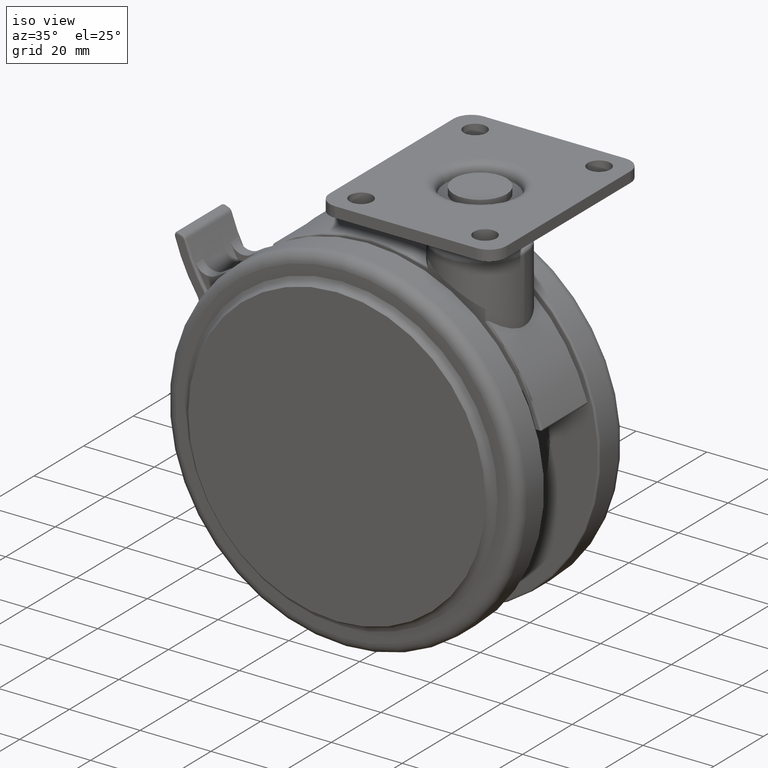
[diagram: clean part render]
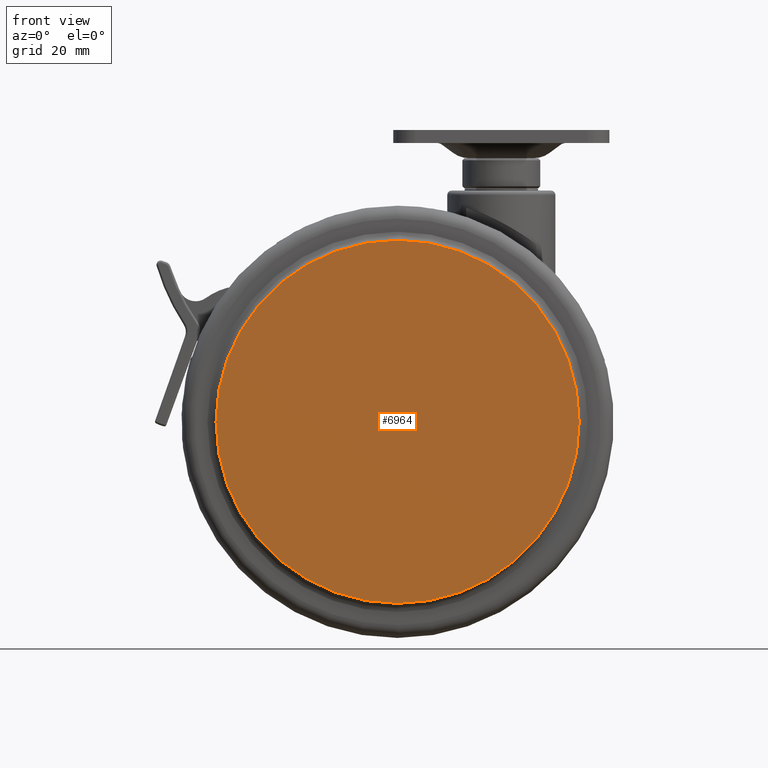
[diagram: tour spotlight — one face highlighted and labeled with its STEP entity id]
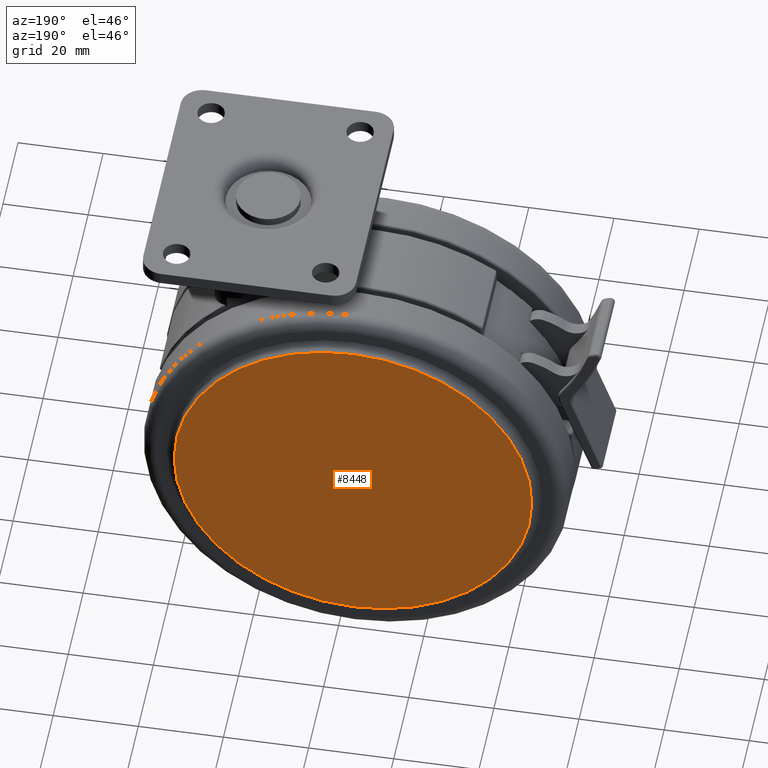
[diagram: tour spotlight — one face highlighted and labeled with its STEP entity id]
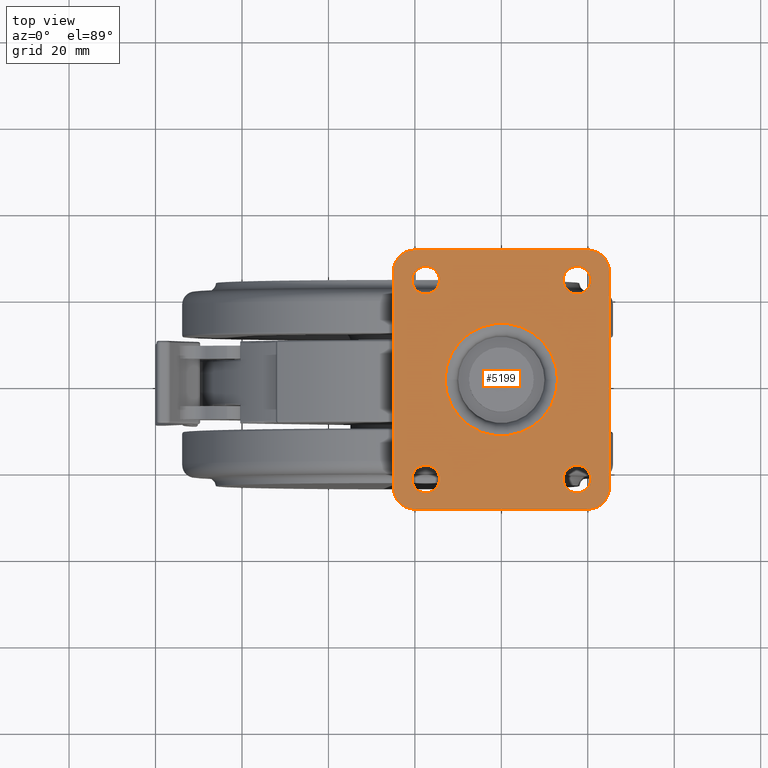
[diagram: tour spotlight — one face highlighted and labeled with its STEP entity id]
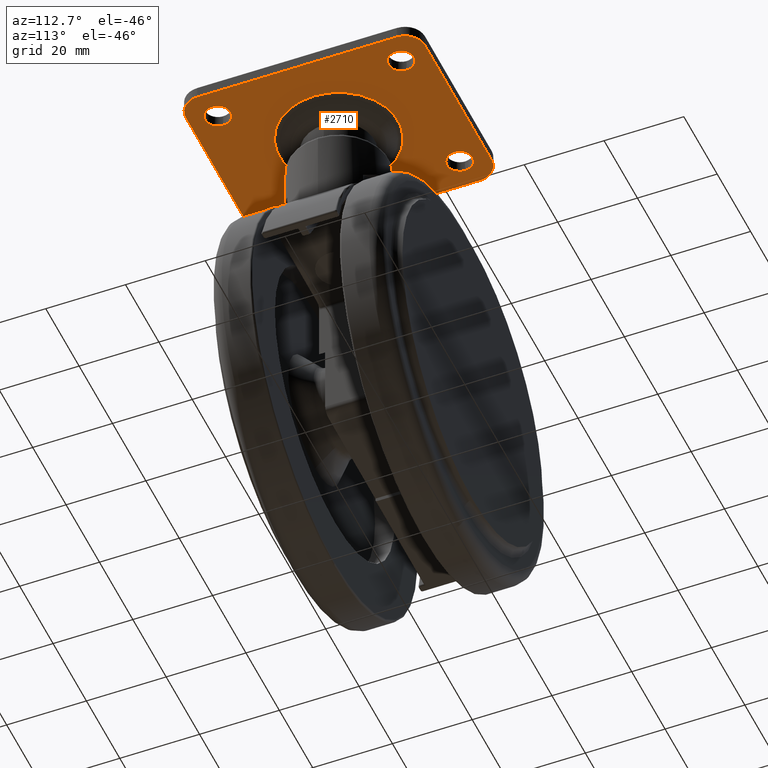
[diagram: tour spotlight — one face highlighted and labeled with its STEP entity id]
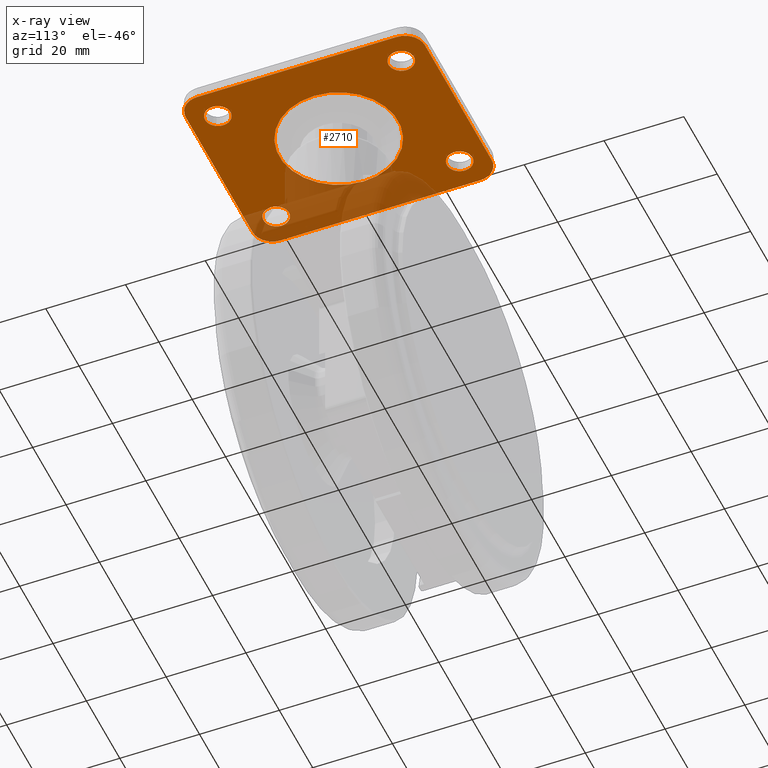
[diagram: x-ray of the same camera — body ghosted, this tour face saturated]
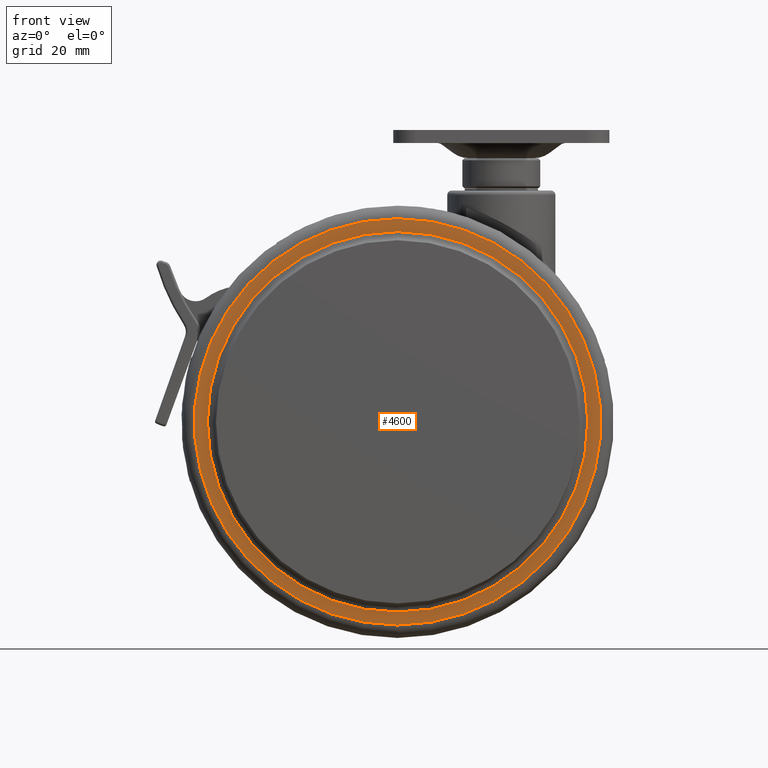
[diagram: tour spotlight — one face highlighted and labeled with its STEP entity id]
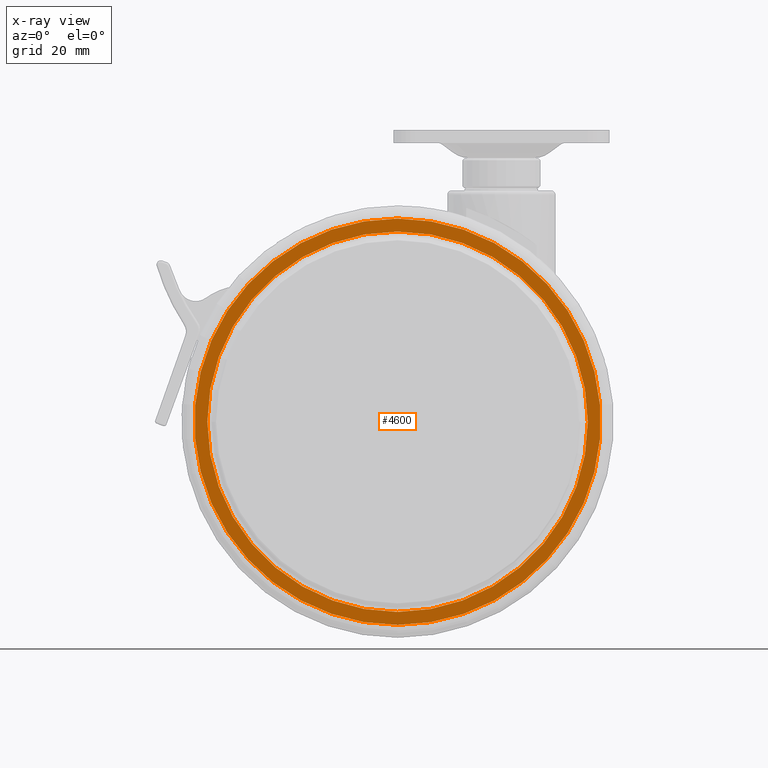
[diagram: x-ray of the same camera — body ghosted, this tour face saturated]
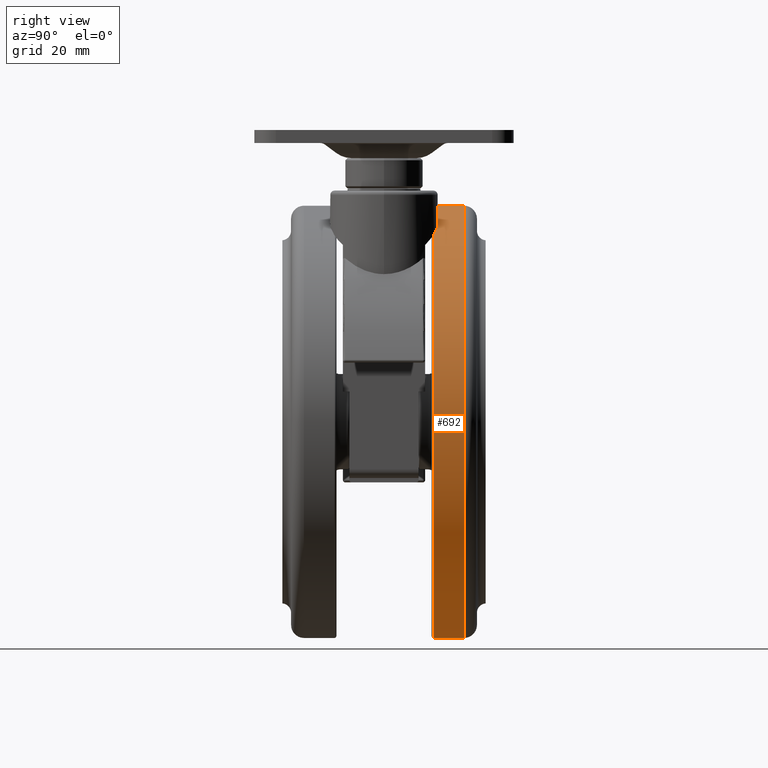
[diagram: tour spotlight — one face highlighted and labeled with its STEP entity id]
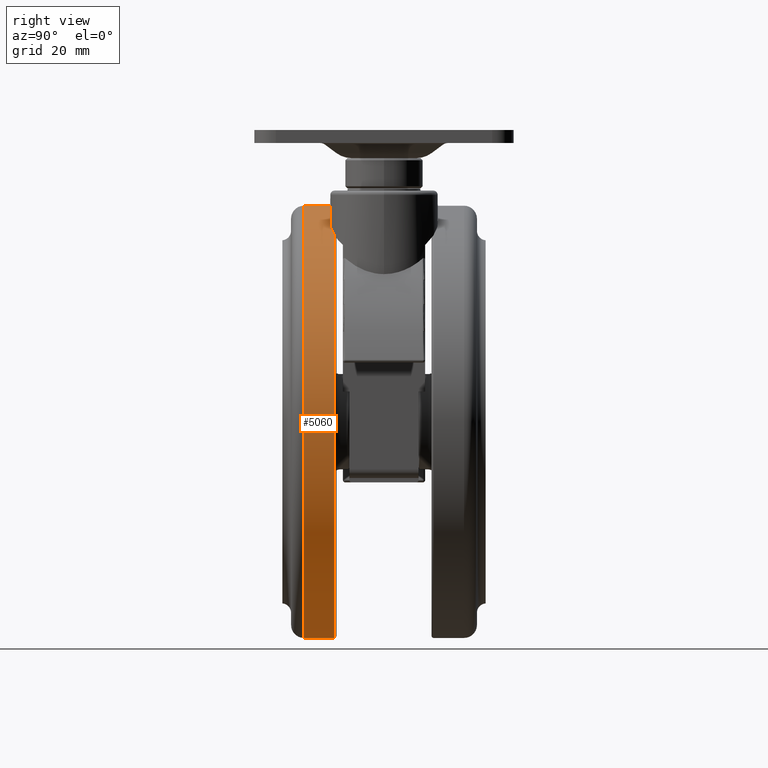
[diagram: tour spotlight — one face highlighted and labeled with its STEP entity id]
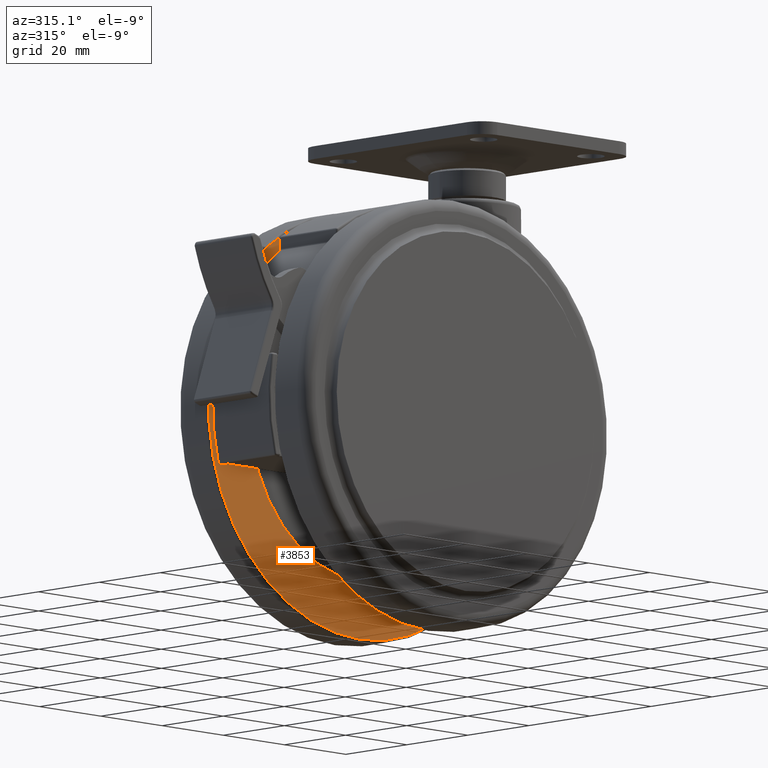
[diagram: tour spotlight — one face highlighted and labeled with its STEP entity id]
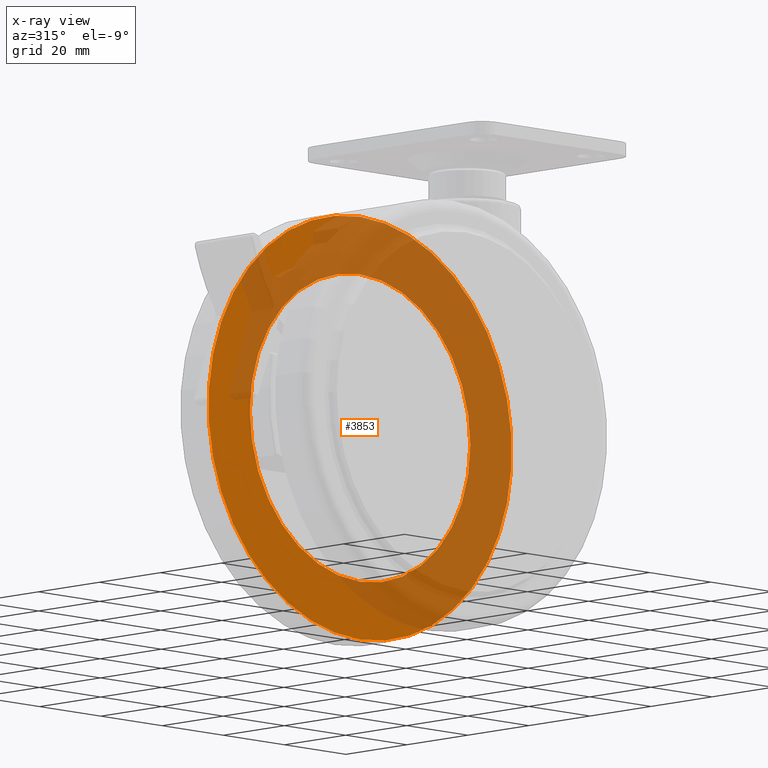
[diagram: x-ray of the same camera — body ghosted, this tour face saturated]
A machine part: a face-by-face anatomy tour. The part has 282 B-rep faces; the first image is the clean iso view, then the 8 largest visible faces are spotlighted one at a time (largest first), each with its STEP entity span.

Face 1 — front view, entity #6964. In plain terms, the highlighted planar face has unit normal (0, 1, 0).
Definition (entity closure, byte-faithful):
#61 = AXIS2_PLACEMENT_3D ( 'NONE', #7672, #7645, #7011 ) ;
#237 = DIRECTION ( 'NONE',  ( 0.0000000000000000000, 1.000000000000000000, 0.0000000000000000000 ) ) ;
#574 = CARTESIAN_POINT ( 'NONE',  ( -23.99999999999999300, -23.50000000000000000, -11.49999999999999600 ) ) ;
#976 = AXIS2_PLACEMENT_3D ( 'NONE', #2890, #237, #4908 ) ;
#1227 = CARTESIAN_POINT ( 'NONE',  ( -24.00000000000000000, -23.50000000000000000, -95.50000000000000000 ) ) ;
#1436 = EDGE_CURVE ( 'NONE', #5330, #2767, #8590, .T. ) ;
#1975 = ORIENTED_EDGE ( 'NONE', *, *, #4706, .T. ) ;
#2064 = DIRECTION ( 'NONE',  ( 0.0000000000000000000, -1.000000000000000000, 0.0000000000000000000 ) ) ;
#2527 = CIRCLE ( 'NONE', #5586, 42.00000000000000000 ) ;
#2767 = VERTEX_POINT ( 'NONE', #1227 ) ;
#2890 = CARTESIAN_POINT ( 'NONE',  ( -66.00000000000000000, -23.50000000000000000, -53.50000000000000000 ) ) ;
#3234 = ORIENTED_EDGE ( 'NONE', *, *, #1436, .T. ) ;
#3583 = PLANE ( 'NONE',  #976 ) ;
#4706 = EDGE_CURVE ( 'NONE', #2767, #5330, #2527, .T. ) ;
#4908 = DIRECTION ( 'NONE',  ( 0.0000000000000000000, 0.0000000000000000000, 1.000000000000000000 ) ) ;
#5330 = VERTEX_POINT ( 'NONE', #574 ) ;
#5586 = AXIS2_PLACEMENT_3D ( 'NONE', #6043, #2064, #6711 ) ;
#6043 = CARTESIAN_POINT ( 'NONE',  ( -24.00000000000000000, -23.50000000000000000, -53.50000000000000000 ) ) ;
#6420 = FACE_OUTER_BOUND ( 'NONE', #6539, .T. ) ;
#6539 = EDGE_LOOP ( 'NONE', ( #1975, #3234 ) ) ;
#6711 = DIRECTION ( 'NONE',  ( 0.0000000000000000000, 0.0000000000000000000, -1.000000000000000000 ) ) ;
#6964 = ADVANCED_FACE ( 'NONE', ( #6420 ), #3583, .F. ) ;
#7011 = DIRECTION ( 'NONE',  ( 0.0000000000000000000, 0.0000000000000000000, -1.000000000000000000 ) ) ;
#7645 = DIRECTION ( 'NONE',  ( 0.0000000000000000000, -1.000000000000000000, 0.0000000000000000000 ) ) ;
#7672 = CARTESIAN_POINT ( 'NONE',  ( -24.00000000000000000, -23.50000000000000000, -53.50000000000000000 ) ) ;
#8590 = CIRCLE ( 'NONE', #61, 42.00000000000000000 ) ;

Face 2 — auxiliary view, entity #8448. In plain terms, the highlighted planar face has unit normal (-0, -1, 0).
Definition (entity closure, byte-faithful):
#90 = VERTEX_POINT ( 'NONE', #5034 ) ;
#827 = DIRECTION ( 'NONE',  ( -4.161225942742110400E-015, -1.000000000000000000, 0.0000000000000000000 ) ) ;
#1023 = DIRECTION ( 'NONE',  ( -4.161225942742110400E-015, -1.000000000000000000, 0.0000000000000000000 ) ) ;
#1199 = CIRCLE ( 'NONE', #7932, 42.00000000000000000 ) ;
#3028 = ORIENTED_EDGE ( 'NONE', *, *, #3513, .F. ) ;
#3327 = EDGE_LOOP ( 'NONE', ( #3028, #6554 ) ) ;
#3513 = EDGE_CURVE ( 'NONE', #5333, #90, #1199, .T. ) ;
#3515 = CARTESIAN_POINT ( 'NONE',  ( -24.00000000000000000, 23.50000000000000000, -53.50000000000000000 ) ) ;
#4177 = DIRECTION ( 'NONE',  ( 0.0000000000000000000, 0.0000000000000000000, -1.000000000000000000 ) ) ;
#4822 = CARTESIAN_POINT ( 'NONE',  ( -24.00000000000000000, 23.50000000000000000, -53.50000000000000000 ) ) ;
#5034 = CARTESIAN_POINT ( 'NONE',  ( -24.00000000000001100, 23.50000000000000000, -11.49999999999999600 ) ) ;
#5148 = AXIS2_PLACEMENT_3D ( 'NONE', #4822, #827, #5481 ) ;
#5333 = VERTEX_POINT ( 'NONE', #6573 ) ;
#5481 = DIRECTION ( 'NONE',  ( 0.0000000000000000000, 0.0000000000000000000, -1.000000000000000000 ) ) ;
#5677 = DIRECTION ( 'NONE',  ( 0.0000000000000000000, 0.0000000000000000000, 1.000000000000000000 ) ) ;
#6309 = PLANE ( 'NONE',  #8054 ) ;
#6554 = ORIENTED_EDGE ( 'NONE', *, *, #6867, .F. ) ;
#6573 = CARTESIAN_POINT ( 'NONE',  ( -24.00000000000000000, 23.50000000000000000, -95.50000000000000000 ) ) ;
#6867 = EDGE_CURVE ( 'NONE', #90, #5333, #8598, .T. ) ;
#7091 = FACE_OUTER_BOUND ( 'NONE', #3327, .T. ) ;
#7932 = AXIS2_PLACEMENT_3D ( 'NONE', #3515, #8152, #4177 ) ;
#8054 = AXIS2_PLACEMENT_3D ( 'NONE', #8316, #1023, #5677 ) ;
#8152 = DIRECTION ( 'NONE',  ( -4.161225942742110400E-015, -1.000000000000000000, 0.0000000000000000000 ) ) ;
#8316 = CARTESIAN_POINT ( 'NONE',  ( -66.00000000000000000, 23.50000000000035200, -53.50000000000000000 ) ) ;
#8448 = ADVANCED_FACE ( 'NONE', ( #7091 ), #6309, .F. ) ;
#8598 = CIRCLE ( 'NONE', #5148, 42.00000000000000000 ) ;

Face 3 — top view, entity #5199. In plain terms, the highlighted planar face has unit normal (0, 0, -1).
Definition (entity closure, byte-faithful):
#114 = VERTEX_POINT ( 'NONE', #7094 ) ;
#139 = EDGE_CURVE ( 'NONE', #4768, #4383, #723, .T. ) ;
#171 = CIRCLE ( 'NONE', #4493, 3.200000000000001500 ) ;
#198 = CARTESIAN_POINT ( 'NONE',  ( -17.50000000000000000, -23.00000000000000000, 14.00000000000000000 ) ) ;
#242 = CARTESIAN_POINT ( 'NONE',  ( 20.70000000000000300, -23.00000000000000000, 14.00000000000000000 ) ) ;
#328 = LINE ( 'NONE', #1698, #5443 ) ;
#346 = CARTESIAN_POINT ( 'NONE',  ( -20.70000000000000300, 23.00000000000000000, 14.00000000000000000 ) ) ;
#347 = DIRECTION ( 'NONE',  ( -0.0000000000000000000, -0.0000000000000000000, 1.000000000000000000 ) ) ;
#354 = AXIS2_PLACEMENT_3D ( 'NONE', #2260, #6918, #2939 ) ;
#458 = ORIENTED_EDGE ( 'NONE', *, *, #2262, .F. ) ;
#465 = VERTEX_POINT ( 'NONE', #3398 ) ;
#487 = CARTESIAN_POINT ( 'NONE',  ( 14.30000000000000200, 23.00000000000000000, 14.00000000000000000 ) ) ;
#540 = EDGE_LOOP ( 'NONE', ( #458, #6856 ) ) ;
#562 = AXIS2_PLACEMENT_3D ( 'NONE', #2992, #7644, #3677 ) ;
#611 = CIRCLE ( 'NONE', #5923, 13.00000000000000000 ) ;
#700 = ORIENTED_EDGE ( 'NONE', *, *, #4234, .T. ) ;
#723 = CIRCLE ( 'NONE', #2003, 5.000000000000000900 ) ;
#867 = DIRECTION ( 'NONE',  ( -0.0000000000000000000, -0.0000000000000000000, 1.000000000000000000 ) ) ;
#878 = DIRECTION ( 'NONE',  ( -1.000000000000000000, 0.0000000000000000000, 0.0000000000000000000 ) ) ;
#1104 = CARTESIAN_POINT ( 'NONE',  ( 17.50000000000000000, -23.00000000000000000, 14.00000000000000000 ) ) ;
#1158 = FACE_BOUND ( 'NONE', #6442, .T. ) ;
#1179 = DIRECTION ( 'NONE',  ( -0.0000000000000000000, -0.0000000000000000000, 1.000000000000000000 ) ) ;
#1407 = AXIS2_PLACEMENT_3D ( 'NONE', #4853, #867, #5523 ) ;
#1412 = ORIENTED_EDGE ( 'NONE', *, *, #7312, .F. ) ;
#1452 = CARTESIAN_POINT ( 'NONE',  ( -20.00000000000000000, 30.00000000000000000, 14.00000000000000000 ) ) ;
#1488 = LINE ( 'NONE', #1778, #4814 ) ;
#1490 = DIRECTION ( 'NONE',  ( -0.0000000000000000000, -0.0000000000000000000, 1.000000000000000000 ) ) ;
#1523 = CIRCLE ( 'NONE', #3205, 3.199999999999999700 ) ;
#1698 = CARTESIAN_POINT ( 'NONE',  ( -25.00000000000000000, 25.00000000000000000, 14.00000000000000000 ) ) ;
#1776 = EDGE_LOOP ( 'NONE', ( #4647, #1412 ) ) ;
#1778 = CARTESIAN_POINT ( 'NONE',  ( 20.00000000000000000, 30.00000000000000000, 14.00000000000000000 ) ) ;
#1782 = DIRECTION ( 'NONE',  ( -1.000000000000000000, 0.0000000000000000000, 0.0000000000000000000 ) ) ;
#1787 = CARTESIAN_POINT ( 'NONE',  ( -17.50000000000000000, 23.00000000000000000, 14.00000000000000000 ) ) ;
#1900 = DIRECTION ( 'NONE',  ( -0.0000000000000000000, 1.000000000000000000, -0.0000000000000000000 ) ) ;
#1934 = DIRECTION ( 'NONE',  ( -0.0000000000000000000, -0.0000000000000000000, 1.000000000000000000 ) ) ;
#2003 = AXIS2_PLACEMENT_3D ( 'NONE', #5079, #4483, #4446 ) ;
#2015 = CARTESIAN_POINT ( 'NONE',  ( -25.00000000000000000, -25.00000000000000000, 14.00000000000000000 ) ) ;
#2051 = ORIENTED_EDGE ( 'NONE', *, *, #3216, .F. ) ;
#2175 = DIRECTION ( 'NONE',  ( 1.000000000000000000, -0.0000000000000000000, -0.0000000000000000000 ) ) ;
#2260 = CARTESIAN_POINT ( 'NONE',  ( 20.00000000000000000, -25.00000000000000000, 14.00000000000000000 ) ) ;
#2262 = EDGE_CURVE ( 'NONE', #2679, #5907, #171, .T. ) ;
#2270 = VERTEX_POINT ( 'NONE', #5501 ) ;
#2435 = CARTESIAN_POINT ( 'NONE',  ( -25.00000000000000000, 24.99999999999689800, 14.00000000000000000 ) ) ;
#2451 = ORIENTED_EDGE ( 'NONE', *, *, #139, .T. ) ;
#2452 = DIRECTION ( 'NONE',  ( -1.000000000000000000, 0.0000000000000000000, 0.0000000000000000000 ) ) ;
#2617 = DIRECTION ( 'NONE',  ( -0.0000000000000000000, -0.0000000000000000000, 1.000000000000000000 ) ) ;
#2679 = VERTEX_POINT ( 'NONE', #5020 ) ;
#2687 = EDGE_LOOP ( 'NONE', ( #7345, #5780, #8068, #7659, #7952, #4344, #2451, #7742 ) ) ;
#2727 = FACE_OUTER_BOUND ( 'NONE', #2687, .T. ) ;
#2939 = DIRECTION ( 'NONE',  ( -1.000000000000000000, 0.0000000000000000000, 0.0000000000000000000 ) ) ;
#2992 = CARTESIAN_POINT ( 'NONE',  ( 0.0000000000000000000, -2.842170943040399500E-014, 14.00000000000000000 ) ) ;
#3006 = CARTESIAN_POINT ( 'NONE',  ( 13.00000000000000000, -2.682966859151243800E-014, 13.99999999999999800 ) ) ;
#3023 = CARTESIAN_POINT ( 'NONE',  ( 0.0000000000000000000, -2.842170943040399500E-014, 14.00000000000000000 ) ) ;
#3104 = VERTEX_POINT ( 'NONE', #7898 ) ;
#3179 = ORIENTED_EDGE ( 'NONE', *, *, #6471, .T. ) ;
#3205 = AXIS2_PLACEMENT_3D ( 'NONE', #5467, #1490, #6121 ) ;
#3216 = EDGE_CURVE ( 'NONE', #2270, #3849, #1523, .T. ) ;
#3262 = CIRCLE ( 'NONE', #5909, 3.200000000000001500 ) ;
#3299 = EDGE_CURVE ( 'NONE', #3104, #8098, #4437, .T. ) ;
#3306 = VERTEX_POINT ( 'NONE', #242 ) ;
#3312 = LINE ( 'NONE', #4209, #4878 ) ;
#3398 = CARTESIAN_POINT ( 'NONE',  ( -13.00000000000000000, -2.842170943040399500E-014, 13.99999999999999800 ) ) ;
#3490 = CIRCLE ( 'NONE', #8219, 3.199999999999999700 ) ;
#3618 = ORIENTED_EDGE ( 'NONE', *, *, #7448, .F. ) ;
#3641 = CARTESIAN_POINT ( 'NONE',  ( 14.30000000000000200, -23.00000000000000000, 14.00000000000000000 ) ) ;
#3674 = LINE ( 'NONE', #4575, #5437 ) ;
#3677 = DIRECTION ( 'NONE',  ( -1.000000000000000000, 0.0000000000000000000, 0.0000000000000000000 ) ) ;
#3700 = DIRECTION ( 'NONE',  ( -1.000000000000000000, 0.0000000000000000000, 0.0000000000000000000 ) ) ;
#3711 = DIRECTION ( 'NONE',  ( -0.0000000000000000000, -1.000000000000000000, -0.0000000000000000000 ) ) ;
#3797 = EDGE_CURVE ( 'NONE', #3306, #5707, #3490, .T. ) ;
#3800 = CARTESIAN_POINT ( 'NONE',  ( -20.00000000000000000, -25.00000000000000000, 14.00000000000000000 ) ) ;
#3849 = VERTEX_POINT ( 'NONE', #487 ) ;
#3877 = AXIS2_PLACEMENT_3D ( 'NONE', #6596, #2617, #7254 ) ;
#3942 = DIRECTION ( 'NONE',  ( 1.000000000000000000, 0.0000000000000000000, 0.0000000000000000000 ) ) ;
#4103 = CIRCLE ( 'NONE', #562, 13.00000000000000000 ) ;
#4109 = CIRCLE ( 'NONE', #4546, 5.000000000000000900 ) ;
#4209 = CARTESIAN_POINT ( 'NONE',  ( -20.00000000000000000, -30.00000000000000000, 14.00000000000000000 ) ) ;
#4216 = AXIS2_PLACEMENT_3D ( 'NONE', #5908, #1934, #6580 ) ;
#4234 = EDGE_CURVE ( 'NONE', #465, #8125, #4103, .T. ) ;
#4344 = ORIENTED_EDGE ( 'NONE', *, *, #8268, .T. ) ;
#4354 = CARTESIAN_POINT ( 'NONE',  ( -17.50000000000000000, -23.00000000000000000, 14.00000000000000000 ) ) ;
#4383 = VERTEX_POINT ( 'NONE', #2435 ) ;
#4404 = EDGE_CURVE ( 'NONE', #8153, #114, #3262, .T. ) ;
#4437 = CIRCLE ( 'NONE', #354, 5.000000000000000900 ) ;
#4446 = DIRECTION ( 'NONE',  ( -1.000000000000000000, 0.0000000000000000000, 0.0000000000000000000 ) ) ;
#4460 = DIRECTION ( 'NONE',  ( -1.000000000000000000, 0.0000000000000000000, 0.0000000000000000000 ) ) ;
#4473 = VERTEX_POINT ( 'NONE', #5284 ) ;
#4483 = DIRECTION ( 'NONE',  ( -0.0000000000000000000, -0.0000000000000000000, 1.000000000000000000 ) ) ;
#4493 = AXIS2_PLACEMENT_3D ( 'NONE', #198, #4862, #878 ) ;
#4499 = FACE_BOUND ( 'NONE', #8167, .T. ) ;
#4546 = AXIS2_PLACEMENT_3D ( 'NONE', #3800, #8429, #4460 ) ;
#4575 = CARTESIAN_POINT ( 'NONE',  ( 25.00000000000000000, -25.00000000000000000, 14.00000000000000000 ) ) ;
#4647 = ORIENTED_EDGE ( 'NONE', *, *, #4404, .F. ) ;
#4768 = VERTEX_POINT ( 'NONE', #1452 ) ;
#4814 = VECTOR ( 'NONE', #5088, 1000.000000000000000 ) ;
#4843 = EDGE_CURVE ( 'NONE', #8018, #4473, #5231, .T. ) ;
#4853 = CARTESIAN_POINT ( 'NONE',  ( 20.00000000000000000, 25.00000000000000000, 14.00000000000000000 ) ) ;
#4862 = DIRECTION ( 'NONE',  ( -0.0000000000000000000, -0.0000000000000000000, 1.000000000000000000 ) ) ;
#4878 = VECTOR ( 'NONE', #2175, 1000.000000000000000 ) ;
#4925 = CARTESIAN_POINT ( 'NONE',  ( -14.30000000000000100, -23.00000000000000000, 14.00000000000000000 ) ) ;
#5018 = DIRECTION ( 'NONE',  ( -1.000000000000000000, 0.0000000000000000000, 0.0000000000000000000 ) ) ;
#5020 = CARTESIAN_POINT ( 'NONE',  ( -20.70000000000000300, -23.00000000000000000, 14.00000000000000000 ) ) ;
#5079 = CARTESIAN_POINT ( 'NONE',  ( -20.00000000000000000, 25.00000000000000000, 14.00000000000000000 ) ) ;
#5088 = DIRECTION ( 'NONE',  ( -1.000000000000000000, -0.0000000000000000000, -0.0000000000000000000 ) ) ;
#5089 = ORIENTED_EDGE ( 'NONE', *, *, #3797, .F. ) ;
#5160 = CARTESIAN_POINT ( 'NONE',  ( -17.50000000000000000, 23.00000000000000000, 14.00000000000000000 ) ) ;
#5199 = ADVANCED_FACE ( 'NONE', ( #6257, #8237, #4499, #8025, #1158, #2727 ), #7243, .F. ) ;
#5231 = CIRCLE ( 'NONE', #1407, 5.000000000000000900 ) ;
#5284 = CARTESIAN_POINT ( 'NONE',  ( 19.99999999999560200, 30.00000000000000000, 14.00000000000000000 ) ) ;
#5313 = EDGE_CURVE ( 'NONE', #8098, #8018, #3674, .T. ) ;
#5390 = VERTEX_POINT ( 'NONE', #2015 ) ;
#5437 = VECTOR ( 'NONE', #1900, 1000.000000000000000 ) ;
#5443 = VECTOR ( 'NONE', #3711, 1000.000000000000000 ) ;
#5467 = CARTESIAN_POINT ( 'NONE',  ( 17.50000000000000000, 23.00000000000000000, 14.00000000000000000 ) ) ;
#5501 = CARTESIAN_POINT ( 'NONE',  ( 20.70000000000000300, 23.00000000000000000, 14.00000000000000000 ) ) ;
#5523 = DIRECTION ( 'NONE',  ( -1.000000000000000000, 6.938893903907227400E-016, 0.0000000000000000000 ) ) ;
#5545 = CIRCLE ( 'NONE', #6717, 3.200000000000001500 ) ;
#5707 = VERTEX_POINT ( 'NONE', #3641 ) ;
#5735 = EDGE_LOOP ( 'NONE', ( #700, #3179 ) ) ;
#5764 = DIRECTION ( 'NONE',  ( -0.0000000000000000000, -0.0000000000000000000, 1.000000000000000000 ) ) ;
#5780 = ORIENTED_EDGE ( 'NONE', *, *, #6941, .T. ) ;
#5839 = DIRECTION ( 'NONE',  ( -1.000000000000000000, 0.0000000000000000000, 0.0000000000000000000 ) ) ;
#5907 = VERTEX_POINT ( 'NONE', #4925 ) ;
#5908 = CARTESIAN_POINT ( 'NONE',  ( 17.50000000000000000, 23.00000000000000000, 14.00000000000000000 ) ) ;
#5909 = AXIS2_PLACEMENT_3D ( 'NONE', #5160, #1179, #5839 ) ;
#5923 = AXIS2_PLACEMENT_3D ( 'NONE', #3023, #7668, #3700 ) ;
#6031 = CIRCLE ( 'NONE', #3877, 3.199999999999999700 ) ;
#6078 = ORIENTED_EDGE ( 'NONE', *, *, #6131, .F. ) ;
#6121 = DIRECTION ( 'NONE',  ( -1.000000000000000000, 0.0000000000000000000, 0.0000000000000000000 ) ) ;
#6131 = EDGE_CURVE ( 'NONE', #5707, #3306, #6031, .T. ) ;
#6257 = FACE_BOUND ( 'NONE', #5735, .T. ) ;
#6288 = CARTESIAN_POINT ( 'NONE',  ( -20.00000000000000000, -30.00000000000000000, 14.00000000000000000 ) ) ;
#6427 = DIRECTION ( 'NONE',  ( -0.0000000000000000000, -0.0000000000000000000, 1.000000000000000000 ) ) ;
#6442 = EDGE_LOOP ( 'NONE', ( #3618, #2051 ) ) ;
#6471 = EDGE_CURVE ( 'NONE', #8125, #465, #611, .T. ) ;
#6556 = DIRECTION ( 'NONE',  ( 0.0000000000000000000, 0.0000000000000000000, -1.000000000000000000 ) ) ;
#6580 = DIRECTION ( 'NONE',  ( -1.000000000000000000, 0.0000000000000000000, 0.0000000000000000000 ) ) ;
#6596 = CARTESIAN_POINT ( 'NONE',  ( 17.50000000000000000, -23.00000000000000000, 14.00000000000000000 ) ) ;
#6717 = AXIS2_PLACEMENT_3D ( 'NONE', #4354, #347, #5018 ) ;
#6856 = ORIENTED_EDGE ( 'NONE', *, *, #8444, .F. ) ;
#6918 = DIRECTION ( 'NONE',  ( -0.0000000000000000000, -0.0000000000000000000, 1.000000000000000000 ) ) ;
#6941 = EDGE_CURVE ( 'NONE', #8099, #3104, #3312, .T. ) ;
#7090 = EDGE_CURVE ( 'NONE', #5390, #8099, #4109, .T. ) ;
#7094 = CARTESIAN_POINT ( 'NONE',  ( -14.30000000000000100, 23.00000000000000000, 14.00000000000000000 ) ) ;
#7243 = PLANE ( 'NONE',  #7919 ) ;
#7254 = DIRECTION ( 'NONE',  ( -1.000000000000000000, 0.0000000000000000000, 0.0000000000000000000 ) ) ;
#7312 = EDGE_CURVE ( 'NONE', #114, #8153, #7526, .T. ) ;
#7345 = ORIENTED_EDGE ( 'NONE', *, *, #7090, .T. ) ;
#7448 = EDGE_CURVE ( 'NONE', #3849, #2270, #8447, .T. ) ;
#7495 = AXIS2_PLACEMENT_3D ( 'NONE', #1787, #6427, #2452 ) ;
#7515 = CARTESIAN_POINT ( 'NONE',  ( 25.00000000000000000, 25.00000000000000000, 14.00000000000000000 ) ) ;
#7526 = CIRCLE ( 'NONE', #7495, 3.200000000000001500 ) ;
#7644 = DIRECTION ( 'NONE',  ( 0.0000000000000000000, 0.0000000000000000000, -1.000000000000000000 ) ) ;
#7659 = ORIENTED_EDGE ( 'NONE', *, *, #5313, .T. ) ;
#7668 = DIRECTION ( 'NONE',  ( 0.0000000000000000000, 0.0000000000000000000, -1.000000000000000000 ) ) ;
#7742 = ORIENTED_EDGE ( 'NONE', *, *, #8145, .T. ) ;
#7898 = CARTESIAN_POINT ( 'NONE',  ( 20.00000000000000000, -30.00000000000000000, 14.00000000000000000 ) ) ;
#7914 = CARTESIAN_POINT ( 'NONE',  ( 0.0000000000000000000, 0.0000000000000000000, 14.00000000000000000 ) ) ;
#7919 = AXIS2_PLACEMENT_3D ( 'NONE', #7914, #6556, #3942 ) ;
#7952 = ORIENTED_EDGE ( 'NONE', *, *, #4843, .T. ) ;
#8018 = VERTEX_POINT ( 'NONE', #7515 ) ;
#8025 = FACE_BOUND ( 'NONE', #540, .T. ) ;
#8068 = ORIENTED_EDGE ( 'NONE', *, *, #3299, .T. ) ;
#8098 = VERTEX_POINT ( 'NONE', #8284 ) ;
#8099 = VERTEX_POINT ( 'NONE', #6288 ) ;
#8125 = VERTEX_POINT ( 'NONE', #3006 ) ;
#8145 = EDGE_CURVE ( 'NONE', #4383, #5390, #328, .T. ) ;
#8153 = VERTEX_POINT ( 'NONE', #346 ) ;
#8167 = EDGE_LOOP ( 'NONE', ( #6078, #5089 ) ) ;
#8219 = AXIS2_PLACEMENT_3D ( 'NONE', #1104, #5764, #1782 ) ;
#8237 = FACE_BOUND ( 'NONE', #1776, .T. ) ;
#8268 = EDGE_CURVE ( 'NONE', #4473, #4768, #1488, .T. ) ;
#8284 = CARTESIAN_POINT ( 'NONE',  ( 25.00000000000000000, -25.00000000000000000, 14.00000000000000000 ) ) ;
#8429 = DIRECTION ( 'NONE',  ( -0.0000000000000000000, -0.0000000000000000000, 1.000000000000000000 ) ) ;
#8444 = EDGE_CURVE ( 'NONE', #5907, #2679, #5545, .T. ) ;
#8447 = CIRCLE ( 'NONE', #4216, 3.199999999999999700 ) ;

Face 4 — auxiliary view, entity #2710. An x-ray twin of the same camera follows (body ghosted, this face saturated) — the face is partly hidden behind the body. In plain terms, the highlighted planar face has unit normal (0, 0, -1).
Definition (entity closure, byte-faithful):
#7 = DIRECTION ( 'NONE',  ( -1.000000000000000000, 0.0000000000000000000, 0.0000000000000000000 ) ) ;
#86 = VERTEX_POINT ( 'NONE', #4539 ) ;
#132 = CARTESIAN_POINT ( 'NONE',  ( 14.30000000000000200, 23.00000000000000000, 11.00000000000011900 ) ) ;
#259 = CARTESIAN_POINT ( 'NONE',  ( -14.30000000000000100, -23.00000000000000000, 11.00000000000011900 ) ) ;
#264 = CARTESIAN_POINT ( 'NONE',  ( 14.90726392034459900, 1.825613304409483500E-015, 11.00000000000000000 ) ) ;
#267 = CARTESIAN_POINT ( 'NONE',  ( 25.00000000000000000, -25.00000000000000000, 11.00000000000011900 ) ) ;
#282 = DIRECTION ( 'NONE',  ( 1.000000000000000000, -0.0000000000000000000, -0.0000000000000000000 ) ) ;
#316 = EDGE_CURVE ( 'NONE', #8199, #4693, #6977, .T. ) ;
#365 = ORIENTED_EDGE ( 'NONE', *, *, #316, .T. ) ;
#464 = VECTOR ( 'NONE', #3613, 1000.000000000000000 ) ;
#489 = EDGE_LOOP ( 'NONE', ( #7255, #1882 ) ) ;
#676 = LINE ( 'NONE', #267, #464 ) ;
#773 = CARTESIAN_POINT ( 'NONE',  ( -17.50000000000000000, -23.00000000000000000, 11.00000000000011900 ) ) ;
#837 = EDGE_LOOP ( 'NONE', ( #365, #4155 ) ) ;
#890 = CARTESIAN_POINT ( 'NONE',  ( -17.50000000000000000, -23.00000000000000000, 11.00000000000011900 ) ) ;
#904 = VECTOR ( 'NONE', #3870, 1000.000000000000000 ) ;
#908 = VERTEX_POINT ( 'NONE', #3291 ) ;
#1030 = VERTEX_POINT ( 'NONE', #6882 ) ;
#1205 = DIRECTION ( 'NONE',  ( -0.0000000000000000000, -0.0000000000000000000, 1.000000000000000000 ) ) ;
#1329 = DIRECTION ( 'NONE',  ( -0.0000000000000000000, -0.0000000000000000000, 1.000000000000000000 ) ) ;
#1370 = CARTESIAN_POINT ( 'NONE',  ( -14.90726392034459900, 0.0000000000000000000, 11.00000000000000000 ) ) ;
#1445 = DIRECTION ( 'NONE',  ( -1.000000000000000000, 0.0000000000000000000, 0.0000000000000000000 ) ) ;
#1516 = ORIENTED_EDGE ( 'NONE', *, *, #2278, .F. ) ;
#1530 = FACE_BOUND ( 'NONE', #7565, .T. ) ;
#1532 = CARTESIAN_POINT ( 'NONE',  ( 25.00000000000000000, 25.00000000000000000, 11.00000000000011900 ) ) ;
#1568 = DIRECTION ( 'NONE',  ( -1.000000000000000000, 0.0000000000000000000, 0.0000000000000000000 ) ) ;
#1629 = EDGE_CURVE ( 'NONE', #6308, #2200, #4449, .T. ) ;
#1645 = AXIS2_PLACEMENT_3D ( 'NONE', #3123, #7750, #3799 ) ;
#1679 = EDGE_LOOP ( 'NONE', ( #3717, #7029, #6823, #1516, #8369, #3086, #6290, #2967 ) ) ;
#1692 = VERTEX_POINT ( 'NONE', #5161 ) ;
#1743 = VECTOR ( 'NONE', #6188, 1000.000000000000000 ) ;
#1875 = EDGE_CURVE ( 'NONE', #3218, #1692, #6009, .T. ) ;
#1882 = ORIENTED_EDGE ( 'NONE', *, *, #6799, .T. ) ;
#1884 = EDGE_CURVE ( 'NONE', #1030, #7191, #8075, .T. ) ;
#1957 = CARTESIAN_POINT ( 'NONE',  ( 20.00000000000000000, -25.00000000000000000, 11.00000000000011900 ) ) ;
#2129 = CIRCLE ( 'NONE', #3703, 14.90726392034459900 ) ;
#2200 = VERTEX_POINT ( 'NONE', #6789 ) ;
#2245 = AXIS2_PLACEMENT_3D ( 'NONE', #5195, #1205, #3276 ) ;
#2278 = EDGE_CURVE ( 'NONE', #3966, #2929, #5290, .T. ) ;
#2361 = VECTOR ( 'NONE', #282, 1000.000000000000000 ) ;
#2379 = CARTESIAN_POINT ( 'NONE',  ( -17.50000000000000000, 23.00000000000000000, 11.00000000000011900 ) ) ;
#2448 = CARTESIAN_POINT ( 'NONE',  ( 20.70000000000000300, -23.00000000000000000, 11.00000000000011900 ) ) ;
#2593 = AXIS2_PLACEMENT_3D ( 'NONE', #3249, #7875, #3912 ) ;
#2609 = EDGE_CURVE ( 'NONE', #8208, #6147, #4139, .T. ) ;
#2630 = DIRECTION ( 'NONE',  ( -1.000000000000000000, 0.0000000000000000000, 0.0000000000000000000 ) ) ;
#2710 = ADVANCED_FACE ( 'NONE', ( #5062, #6836, #1530, #8380, #3300, #6621 ), #7821, .T. ) ;
#2745 = DIRECTION ( 'NONE',  ( -0.0000000000000000000, -0.0000000000000000000, 1.000000000000000000 ) ) ;
#2749 = EDGE_CURVE ( 'NONE', #4859, #3966, #6405, .T. ) ;
#2929 = VERTEX_POINT ( 'NONE', #5455 ) ;
#2952 = CIRCLE ( 'NONE', #5559, 5.000000000000000900 ) ;
#2967 = ORIENTED_EDGE ( 'NONE', *, *, #2609, .F. ) ;
#3009 = CIRCLE ( 'NONE', #4719, 3.200000000000001500 ) ;
#3049 = CARTESIAN_POINT ( 'NONE',  ( 17.50000000000000000, 23.00000000000000000, 11.00000000000011900 ) ) ;
#3065 = DIRECTION ( 'NONE',  ( -1.000000000000000000, 0.0000000000000000000, 0.0000000000000000000 ) ) ;
#3086 = ORIENTED_EDGE ( 'NONE', *, *, #3341, .F. ) ;
#3115 = ORIENTED_EDGE ( 'NONE', *, *, #1875, .T. ) ;
#3123 = CARTESIAN_POINT ( 'NONE',  ( 17.50000000000000000, -23.00000000000000000, 11.00000000000011900 ) ) ;
#3136 = CARTESIAN_POINT ( 'NONE',  ( 0.0000000000000000000, 0.0000000000000000000, 11.00000000000000000 ) ) ;
#3218 = VERTEX_POINT ( 'NONE', #132 ) ;
#3249 = CARTESIAN_POINT ( 'NONE',  ( 0.0000000000000000000, 0.0000000000000000000, 11.00000000000000000 ) ) ;
#3276 = DIRECTION ( 'NONE',  ( -1.000000000000000000, 0.0000000000000000000, 0.0000000000000000000 ) ) ;
#3291 = CARTESIAN_POINT ( 'NONE',  ( 14.30000000000000200, -23.00000000000000000, 11.00000000000011900 ) ) ;
#3296 = DIRECTION ( 'NONE',  ( -0.0000000000000000000, -0.0000000000000000000, 1.000000000000000000 ) ) ;
#3300 = FACE_BOUND ( 'NONE', #4797, .T. ) ;
#3304 = AXIS2_PLACEMENT_3D ( 'NONE', #2379, #7025, #3065 ) ;
#3322 = CARTESIAN_POINT ( 'NONE',  ( 19.99999999999560200, 30.00000000000000000, 11.00000000000011900 ) ) ;
#3341 = EDGE_CURVE ( 'NONE', #86, #4859, #676, .T. ) ;
#3382 = EDGE_CURVE ( 'NONE', #5425, #6423, #7748, .T. ) ;
#3558 = DIRECTION ( 'NONE',  ( -0.0000000000000000000, -0.0000000000000000000, 1.000000000000000000 ) ) ;
#3613 = DIRECTION ( 'NONE',  ( -0.0000000000000000000, 1.000000000000000000, -0.0000000000000000000 ) ) ;
#3703 = AXIS2_PLACEMENT_3D ( 'NONE', #3136, #7766, #3804 ) ;
#3715 = DIRECTION ( 'NONE',  ( -1.000000000000000000, 0.0000000000000000000, 0.0000000000000000000 ) ) ;
#3717 = ORIENTED_EDGE ( 'NONE', *, *, #7915, .F. ) ;
#3732 = EDGE_CURVE ( 'NONE', #1692, #3218, #5661, .T. ) ;
#3799 = DIRECTION ( 'NONE',  ( -1.000000000000000000, 0.0000000000000000000, 0.0000000000000000000 ) ) ;
#3802 = VERTEX_POINT ( 'NONE', #2448 ) ;
#3804 = DIRECTION ( 'NONE',  ( -1.000000000000000000, 0.0000000000000000000, 0.0000000000000000000 ) ) ;
#3870 = DIRECTION ( 'NONE',  ( -0.0000000000000000000, -1.000000000000000000, -0.0000000000000000000 ) ) ;
#3891 = DIRECTION ( 'NONE',  ( 1.000000000000000000, 0.0000000000000000000, 0.0000000000000000000 ) ) ;
#3912 = DIRECTION ( 'NONE',  ( -1.000000000000000000, 0.0000000000000000000, 0.0000000000000000000 ) ) ;
#3966 = VERTEX_POINT ( 'NONE', #3322 ) ;
#3989 = AXIS2_PLACEMENT_3D ( 'NONE', #4526, #7846, #3891 ) ;
#4106 = CARTESIAN_POINT ( 'NONE',  ( -25.00000000000000000, 24.99999999999689800, 11.00000000000011900 ) ) ;
#4139 = LINE ( 'NONE', #8261, #2361 ) ;
#4155 = ORIENTED_EDGE ( 'NONE', *, *, #5758, .T. ) ;
#4323 = CARTESIAN_POINT ( 'NONE',  ( -25.00000000000000000, 25.00000000000000000, 11.00000000000011900 ) ) ;
#4340 = AXIS2_PLACEMENT_3D ( 'NONE', #6726, #2745, #7403 ) ;
#4376 = EDGE_CURVE ( 'NONE', #6423, #5425, #2129, .T. ) ;
#4449 = LINE ( 'NONE', #4323, #904 ) ;
#4526 = CARTESIAN_POINT ( 'NONE',  ( 0.0000000000000000000, 0.0000000000000000000, 11.00000000000000000 ) ) ;
#4539 = CARTESIAN_POINT ( 'NONE',  ( 25.00000000000000000, -25.00000000000000000, 11.00000000000011900 ) ) ;
#4693 = VERTEX_POINT ( 'NONE', #7346 ) ;
#4719 = AXIS2_PLACEMENT_3D ( 'NONE', #773, #5434, #1445 ) ;
#4763 = AXIS2_PLACEMENT_3D ( 'NONE', #5322, #1329, #5976 ) ;
#4797 = EDGE_LOOP ( 'NONE', ( #3115, #5474 ) ) ;
#4859 = VERTEX_POINT ( 'NONE', #1532 ) ;
#5058 = CARTESIAN_POINT ( 'NONE',  ( -20.00000000000000000, -30.00000000000000000, 11.00000000000011900 ) ) ;
#5062 = FACE_BOUND ( 'NONE', #5576, .T. ) ;
#5112 = AXIS2_PLACEMENT_3D ( 'NONE', #6113, #8558, #7 ) ;
#5161 = CARTESIAN_POINT ( 'NONE',  ( 20.70000000000000300, 23.00000000000000000, 11.00000000000011900 ) ) ;
#5195 = CARTESIAN_POINT ( 'NONE',  ( 17.50000000000000000, -23.00000000000000000, 11.00000000000011900 ) ) ;
#5290 = LINE ( 'NONE', #6163, #1743 ) ;
#5322 = CARTESIAN_POINT ( 'NONE',  ( -20.00000000000000000, 25.00000000000000000, 11.00000000000011900 ) ) ;
#5326 = AXIS2_PLACEMENT_3D ( 'NONE', #7273, #3296, #7940 ) ;
#5340 = CIRCLE ( 'NONE', #4340, 5.000000000000000900 ) ;
#5425 = VERTEX_POINT ( 'NONE', #1370 ) ;
#5434 = DIRECTION ( 'NONE',  ( -0.0000000000000000000, -0.0000000000000000000, 1.000000000000000000 ) ) ;
#5455 = CARTESIAN_POINT ( 'NONE',  ( -20.00000000000000000, 30.00000000000000000, 11.00000000000011900 ) ) ;
#5474 = ORIENTED_EDGE ( 'NONE', *, *, #3732, .T. ) ;
#5557 = DIRECTION ( 'NONE',  ( -0.0000000000000000000, -0.0000000000000000000, 1.000000000000000000 ) ) ;
#5559 = AXIS2_PLACEMENT_3D ( 'NONE', #1957, #6605, #2630 ) ;
#5576 = EDGE_LOOP ( 'NONE', ( #5776, #7547 ) ) ;
#5661 = CIRCLE ( 'NONE', #5983, 3.199999999999999700 ) ;
#5702 = AXIS2_PLACEMENT_3D ( 'NONE', #7523, #3558, #8180 ) ;
#5758 = EDGE_CURVE ( 'NONE', #4693, #8199, #7398, .T. ) ;
#5776 = ORIENTED_EDGE ( 'NONE', *, *, #3382, .T. ) ;
#5823 = CIRCLE ( 'NONE', #4763, 5.000000000000000900 ) ;
#5880 = EDGE_CURVE ( 'NONE', #908, #3802, #7901, .T. ) ;
#5976 = DIRECTION ( 'NONE',  ( -1.000000000000000000, 0.0000000000000000000, 0.0000000000000000000 ) ) ;
#5983 = AXIS2_PLACEMENT_3D ( 'NONE', #3049, #7685, #3715 ) ;
#6009 = CIRCLE ( 'NONE', #5702, 3.199999999999999700 ) ;
#6113 = CARTESIAN_POINT ( 'NONE',  ( -17.50000000000000000, 23.00000000000000000, 11.00000000000011900 ) ) ;
#6147 = VERTEX_POINT ( 'NONE', #7950 ) ;
#6148 = AXIS2_PLACEMENT_3D ( 'NONE', #890, #5557, #1568 ) ;
#6157 = EDGE_CURVE ( 'NONE', #2929, #6308, #5823, .T. ) ;
#6163 = CARTESIAN_POINT ( 'NONE',  ( 20.00000000000000000, 30.00000000000000000, 11.00000000000011900 ) ) ;
#6188 = DIRECTION ( 'NONE',  ( -1.000000000000000000, -0.0000000000000000000, -0.0000000000000000000 ) ) ;
#6290 = ORIENTED_EDGE ( 'NONE', *, *, #7482, .F. ) ;
#6308 = VERTEX_POINT ( 'NONE', #4106 ) ;
#6405 = CIRCLE ( 'NONE', #5326, 5.000000000000000900 ) ;
#6423 = VERTEX_POINT ( 'NONE', #264 ) ;
#6605 = DIRECTION ( 'NONE',  ( -0.0000000000000000000, -0.0000000000000000000, 1.000000000000000000 ) ) ;
#6621 = FACE_OUTER_BOUND ( 'NONE', #1679, .T. ) ;
#6726 = CARTESIAN_POINT ( 'NONE',  ( -20.00000000000000000, -25.00000000000000000, 11.00000000000011900 ) ) ;
#6789 = CARTESIAN_POINT ( 'NONE',  ( -25.00000000000000000, -25.00000000000000000, 11.00000000000011900 ) ) ;
#6799 = EDGE_CURVE ( 'NONE', #7191, #1030, #3009, .T. ) ;
#6823 = ORIENTED_EDGE ( 'NONE', *, *, #6157, .F. ) ;
#6836 = FACE_BOUND ( 'NONE', #837, .T. ) ;
#6882 = CARTESIAN_POINT ( 'NONE',  ( -20.70000000000000300, -23.00000000000000000, 11.00000000000011900 ) ) ;
#6977 = CIRCLE ( 'NONE', #5112, 3.200000000000001500 ) ;
#7025 = DIRECTION ( 'NONE',  ( -0.0000000000000000000, -0.0000000000000000000, 1.000000000000000000 ) ) ;
#7029 = ORIENTED_EDGE ( 'NONE', *, *, #1629, .F. ) ;
#7191 = VERTEX_POINT ( 'NONE', #259 ) ;
#7255 = ORIENTED_EDGE ( 'NONE', *, *, #1884, .T. ) ;
#7273 = CARTESIAN_POINT ( 'NONE',  ( 20.00000000000000000, 25.00000000000000000, 11.00000000000011900 ) ) ;
#7346 = CARTESIAN_POINT ( 'NONE',  ( -14.30000000000000100, 23.00000000000000000, 11.00000000000011900 ) ) ;
#7398 = CIRCLE ( 'NONE', #3304, 3.200000000000001500 ) ;
#7403 = DIRECTION ( 'NONE',  ( -1.000000000000000000, 0.0000000000000000000, 0.0000000000000000000 ) ) ;
#7482 = EDGE_CURVE ( 'NONE', #6147, #86, #2952, .T. ) ;
#7523 = CARTESIAN_POINT ( 'NONE',  ( 17.50000000000000000, 23.00000000000000000, 11.00000000000011900 ) ) ;
#7547 = ORIENTED_EDGE ( 'NONE', *, *, #4376, .T. ) ;
#7565 = EDGE_LOOP ( 'NONE', ( #8467, #7607 ) ) ;
#7607 = ORIENTED_EDGE ( 'NONE', *, *, #8523, .T. ) ;
#7685 = DIRECTION ( 'NONE',  ( -0.0000000000000000000, -0.0000000000000000000, 1.000000000000000000 ) ) ;
#7710 = CARTESIAN_POINT ( 'NONE',  ( -20.70000000000000300, 23.00000000000000000, 11.00000000000011900 ) ) ;
#7748 = CIRCLE ( 'NONE', #2593, 14.90726392034459900 ) ;
#7750 = DIRECTION ( 'NONE',  ( -0.0000000000000000000, -0.0000000000000000000, 1.000000000000000000 ) ) ;
#7766 = DIRECTION ( 'NONE',  ( -0.0000000000000000000, -0.0000000000000000000, 1.000000000000000000 ) ) ;
#7821 = PLANE ( 'NONE',  #3989 ) ;
#7846 = DIRECTION ( 'NONE',  ( 0.0000000000000000000, 0.0000000000000000000, -1.000000000000000000 ) ) ;
#7875 = DIRECTION ( 'NONE',  ( -0.0000000000000000000, -0.0000000000000000000, 1.000000000000000000 ) ) ;
#7901 = CIRCLE ( 'NONE', #2245, 3.199999999999999700 ) ;
#7915 = EDGE_CURVE ( 'NONE', #2200, #8208, #5340, .T. ) ;
#7940 = DIRECTION ( 'NONE',  ( -1.000000000000000000, 6.938893903907227400E-016, 0.0000000000000000000 ) ) ;
#7950 = CARTESIAN_POINT ( 'NONE',  ( 20.00000000000000000, -30.00000000000000000, 11.00000000000011900 ) ) ;
#8075 = CIRCLE ( 'NONE', #6148, 3.200000000000001500 ) ;
#8180 = DIRECTION ( 'NONE',  ( -1.000000000000000000, 0.0000000000000000000, 0.0000000000000000000 ) ) ;
#8199 = VERTEX_POINT ( 'NONE', #7710 ) ;
#8208 = VERTEX_POINT ( 'NONE', #5058 ) ;
#8235 = CIRCLE ( 'NONE', #1645, 3.199999999999999700 ) ;
#8261 = CARTESIAN_POINT ( 'NONE',  ( -20.00000000000000000, -30.00000000000000000, 11.00000000000011900 ) ) ;
#8369 = ORIENTED_EDGE ( 'NONE', *, *, #2749, .F. ) ;
#8380 = FACE_BOUND ( 'NONE', #489, .T. ) ;
#8467 = ORIENTED_EDGE ( 'NONE', *, *, #5880, .T. ) ;
#8523 = EDGE_CURVE ( 'NONE', #3802, #908, #8235, .T. ) ;
#8558 = DIRECTION ( 'NONE',  ( -0.0000000000000000000, -0.0000000000000000000, 1.000000000000000000 ) ) ;

Face 5 — front view, entity #4600. An x-ray twin of the same camera follows (body ghosted, this face saturated) — the face is partly hidden behind the body. In plain terms, the highlighted planar face has unit normal (0, 1, 0).
Definition (entity closure, byte-faithful):
#152 = ORIENTED_EDGE ( 'NONE', *, *, #8460, .T. ) ;
#216 = DIRECTION ( 'NONE',  ( 0.0000000000000000000, 0.0000000000000000000, -1.000000000000000000 ) ) ;
#239 = AXIS2_PLACEMENT_3D ( 'NONE', #6676, #2690, #7340 ) ;
#294 = AXIS2_PLACEMENT_3D ( 'NONE', #6372, #2393, #7036 ) ;
#329 = EDGE_LOOP ( 'NONE', ( #5640, #3511 ) ) ;
#571 = AXIS2_PLACEMENT_3D ( 'NONE', #5524, #1533, #6178 ) ;
#670 = AXIS2_PLACEMENT_3D ( 'NONE', #1895, #8534, #4571 ) ;
#840 = ORIENTED_EDGE ( 'NONE', *, *, #6749, .T. ) ;
#1514 = CARTESIAN_POINT ( 'NONE',  ( -23.99999999999999300, -21.50000000000000000, -9.499999999999397800 ) ) ;
#1533 = DIRECTION ( 'NONE',  ( 0.0000000000000000000, -1.000000000000000000, 0.0000000000000000000 ) ) ;
#1587 = CIRCLE ( 'NONE', #294, 47.00000000000000700 ) ;
#1876 = CIRCLE ( 'NONE', #571, 44.00000000000104400 ) ;
#1895 = CARTESIAN_POINT ( 'NONE',  ( -71.00000000000000000, -21.50000000000000000, -53.50000000000000000 ) ) ;
#2232 = VERTEX_POINT ( 'NONE', #1514 ) ;
#2305 = CARTESIAN_POINT ( 'NONE',  ( -23.99999999999999300, -21.50000000000000000, -6.499999999999999100 ) ) ;
#2351 = VERTEX_POINT ( 'NONE', #2305 ) ;
#2393 = DIRECTION ( 'NONE',  ( 0.0000000000000000000, -1.000000000000000000, 0.0000000000000000000 ) ) ;
#2690 = DIRECTION ( 'NONE',  ( 0.0000000000000000000, -1.000000000000000000, 0.0000000000000000000 ) ) ;
#3370 = FACE_BOUND ( 'NONE', #329, .T. ) ;
#3511 = ORIENTED_EDGE ( 'NONE', *, *, #7115, .F. ) ;
#3955 = EDGE_LOOP ( 'NONE', ( #840, #152 ) ) ;
#4571 = DIRECTION ( 'NONE',  ( 0.0000000000000000000, 0.0000000000000000000, 1.000000000000000000 ) ) ;
#4600 = ADVANCED_FACE ( 'NONE', ( #3370, #6693 ), #5203, .F. ) ;
#4873 = VERTEX_POINT ( 'NONE', #7492 ) ;
#4988 = CIRCLE ( 'NONE', #239, 47.00000000000000700 ) ;
#5045 = DIRECTION ( 'NONE',  ( 0.0000000000000000000, -1.000000000000000000, 0.0000000000000000000 ) ) ;
#5203 = PLANE ( 'NONE',  #670 ) ;
#5524 = CARTESIAN_POINT ( 'NONE',  ( -24.00000000000000000, -21.50000000000000000, -53.50000000000000000 ) ) ;
#5640 = ORIENTED_EDGE ( 'NONE', *, *, #6363, .F. ) ;
#5822 = CARTESIAN_POINT ( 'NONE',  ( -24.00000000000000000, -21.50000000000000000, -53.50000000000000000 ) ) ;
#5884 = CARTESIAN_POINT ( 'NONE',  ( -24.00000000000000000, -21.50000000000000000, -100.5000000000000000 ) ) ;
#6178 = DIRECTION ( 'NONE',  ( 0.0000000000000000000, 0.0000000000000000000, -1.000000000000000000 ) ) ;
#6363 = EDGE_CURVE ( 'NONE', #4873, #2232, #1876, .T. ) ;
#6372 = CARTESIAN_POINT ( 'NONE',  ( -24.00000000000000000, -21.50000000000000000, -53.50000000000000000 ) ) ;
#6676 = CARTESIAN_POINT ( 'NONE',  ( -24.00000000000000000, -21.50000000000000000, -53.50000000000000000 ) ) ;
#6693 = FACE_OUTER_BOUND ( 'NONE', #3955, .T. ) ;
#6749 = EDGE_CURVE ( 'NONE', #7415, #2351, #4988, .T. ) ;
#7036 = DIRECTION ( 'NONE',  ( 0.0000000000000000000, 0.0000000000000000000, -1.000000000000000000 ) ) ;
#7115 = EDGE_CURVE ( 'NONE', #2232, #4873, #7432, .T. ) ;
#7340 = DIRECTION ( 'NONE',  ( 0.0000000000000000000, 0.0000000000000000000, -1.000000000000000000 ) ) ;
#7415 = VERTEX_POINT ( 'NONE', #5884 ) ;
#7432 = CIRCLE ( 'NONE', #7661, 44.00000000000104400 ) ;
#7492 = CARTESIAN_POINT ( 'NONE',  ( -24.00000000000000000, -21.50000000000000000, -97.50000000000059700 ) ) ;
#7661 = AXIS2_PLACEMENT_3D ( 'NONE', #5822, #5045, #216 ) ;
#8460 = EDGE_CURVE ( 'NONE', #2351, #7415, #1587, .T. ) ;
#8534 = DIRECTION ( 'NONE',  ( 0.0000000000000000000, 1.000000000000000000, 0.0000000000000000000 ) ) ;

Face 6 — right view, entity #692. In plain terms, the highlighted cylindrical surface (partial cylindrical patch) has radius 50 mm, axis along (0, 1, 0).
Definition (entity closure, byte-faithful):
#692 = ADVANCED_FACE ( 'NONE', ( #4054 ), #3844, .T. ) ;
#1038 = CIRCLE ( 'NONE', #4606, 50.00000000000000700 ) ;
#1471 = VERTEX_POINT ( 'NONE', #5670 ) ;
#1531 = DIRECTION ( 'NONE',  ( -4.161225942742110400E-015, -1.000000000000000000, 0.0000000000000000000 ) ) ;
#1830 = DIRECTION ( 'NONE',  ( 4.161225942742110400E-015, 1.000000000000000000, 0.0000000000000000000 ) ) ;
#1853 = EDGE_CURVE ( 'NONE', #7725, #8304, #6221, .T. ) ;
#2230 = DIRECTION ( 'NONE',  ( 4.161225942742110400E-015, 1.000000000000000000, 0.0000000000000000000 ) ) ;
#2412 = LINE ( 'NONE', #3315, #7512 ) ;
#3172 = DIRECTION ( 'NONE',  ( 0.0000000000000000000, 0.0000000000000000000, -1.000000000000000000 ) ) ;
#3231 = CARTESIAN_POINT ( 'NONE',  ( -24.00000000000000000, 9.986942262581088900E-014, -53.50000000000000000 ) ) ;
#3315 = CARTESIAN_POINT ( 'NONE',  ( -24.00000000000000000, 9.986942262581088900E-014, -103.5000000000000100 ) ) ;
#3551 = ORIENTED_EDGE ( 'NONE', *, *, #4899, .F. ) ;
#3634 = CARTESIAN_POINT ( 'NONE',  ( -24.00000000000000000, 11.50000000000025900, -53.50000000000000000 ) ) ;
#3751 = ORIENTED_EDGE ( 'NONE', *, *, #8385, .T. ) ;
#3844 = CYLINDRICAL_SURFACE ( 'NONE', #5674, 50.00000000000000700 ) ;
#3926 = AXIS2_PLACEMENT_3D ( 'NONE', #5522, #1531, #6177 ) ;
#4054 = FACE_OUTER_BOUND ( 'NONE', #8609, .T. ) ;
#4316 = DIRECTION ( 'NONE',  ( 0.0000000000000000000, 0.0000000000000000000, -1.000000000000000000 ) ) ;
#4381 = ORIENTED_EDGE ( 'NONE', *, *, #6440, .F. ) ;
#4606 = AXIS2_PLACEMENT_3D ( 'NONE', #3634, #8271, #4316 ) ;
#4881 = CARTESIAN_POINT ( 'NONE',  ( -24.00000000000000700, 9.986942262581091500E-014, -3.499999999999996000 ) ) ;
#4899 = EDGE_CURVE ( 'NONE', #1471, #8304, #8338, .T. ) ;
#5104 = VERTEX_POINT ( 'NONE', #6429 ) ;
#5522 = CARTESIAN_POINT ( 'NONE',  ( -24.00000000000000000, 18.50000000000000000, -53.50000000000000000 ) ) ;
#5670 = CARTESIAN_POINT ( 'NONE',  ( -24.00000000000000700, 11.50000000000025900, -3.499999999999996000 ) ) ;
#5674 = AXIS2_PLACEMENT_3D ( 'NONE', #3231, #1830, #3172 ) ;
#6177 = DIRECTION ( 'NONE',  ( 0.0000000000000000000, 0.0000000000000000000, -1.000000000000000000 ) ) ;
#6221 = CIRCLE ( 'NONE', #3926, 50.00000000000000700 ) ;
#6429 = CARTESIAN_POINT ( 'NONE',  ( -24.00000000000000000, 11.50000000000025900, -103.5000000000000100 ) ) ;
#6440 = EDGE_CURVE ( 'NONE', #5104, #1471, #1038, .T. ) ;
#6598 = DIRECTION ( 'NONE',  ( 4.161225942742110400E-015, 1.000000000000000000, 0.0000000000000000000 ) ) ;
#6793 = CARTESIAN_POINT ( 'NONE',  ( -24.00000000000000000, 18.50000000000000000, -103.5000000000000100 ) ) ;
#6797 = VECTOR ( 'NONE', #2230, 1000.000000000000000 ) ;
#7272 = ORIENTED_EDGE ( 'NONE', *, *, #1853, .T. ) ;
#7512 = VECTOR ( 'NONE', #6598, 1000.000000000000000 ) ;
#7725 = VERTEX_POINT ( 'NONE', #6793 ) ;
#8271 = DIRECTION ( 'NONE',  ( -4.161225942742110400E-015, -1.000000000000000000, 0.0000000000000000000 ) ) ;
#8304 = VERTEX_POINT ( 'NONE', #8451 ) ;
#8338 = LINE ( 'NONE', #4881, #6797 ) ;
#8385 = EDGE_CURVE ( 'NONE', #5104, #7725, #2412, .T. ) ;
#8451 = CARTESIAN_POINT ( 'NONE',  ( -24.00000000000000700, 18.50000000000000000, -3.499999999999997300 ) ) ;
#8609 = EDGE_LOOP ( 'NONE', ( #3551, #4381, #3751, #7272 ) ) ;

Face 7 — right view, entity #5060. In plain terms, the highlighted cylindrical surface (partial cylindrical patch) has radius 50 mm, axis along (0, -1, 0).
Definition (entity closure, byte-faithful):
#417 = DIRECTION ( 'NONE',  ( 0.0000000000000000000, 0.0000000000000000000, -1.000000000000000000 ) ) ;
#437 = CARTESIAN_POINT ( 'NONE',  ( -24.00000000000000000, -18.50000000000000000, -103.5000000000000100 ) ) ;
#573 = DIRECTION ( 'NONE',  ( 0.0000000000000000000, -1.000000000000000000, 0.0000000000000000000 ) ) ;
#649 = DIRECTION ( 'NONE',  ( 0.0000000000000000000, 0.0000000000000000000, -1.000000000000000000 ) ) ;
#665 = CARTESIAN_POINT ( 'NONE',  ( -23.99999999999999300, 0.0000000000000000000, -3.499999999999996000 ) ) ;
#877 = EDGE_CURVE ( 'NONE', #1330, #4175, #6333, .T. ) ;
#1063 = DIRECTION ( 'NONE',  ( 0.0000000000000000000, -1.000000000000000000, 0.0000000000000000000 ) ) ;
#1237 = AXIS2_PLACEMENT_3D ( 'NONE', #4419, #1063, #417 ) ;
#1330 = VERTEX_POINT ( 'NONE', #8147 ) ;
#2931 = AXIS2_PLACEMENT_3D ( 'NONE', #4573, #573, #5238 ) ;
#3067 = EDGE_CURVE ( 'NONE', #8531, #4175, #4550, .T. ) ;
#3379 = VECTOR ( 'NONE', #5357, 1000.000000000000000 ) ;
#3424 = EDGE_LOOP ( 'NONE', ( #6237, #7785, #7600, #7391 ) ) ;
#3455 = EDGE_CURVE ( 'NONE', #4435, #1330, #3616, .T. ) ;
#3616 = CIRCLE ( 'NONE', #3931, 50.00000000000000700 ) ;
#3931 = AXIS2_PLACEMENT_3D ( 'NONE', #8595, #4644, #649 ) ;
#4006 = EDGE_CURVE ( 'NONE', #4435, #8531, #5350, .T. ) ;
#4175 = VERTEX_POINT ( 'NONE', #4922 ) ;
#4190 = FACE_OUTER_BOUND ( 'NONE', #3424, .T. ) ;
#4419 = CARTESIAN_POINT ( 'NONE',  ( -24.00000000000000000, 0.0000000000000000000, -53.50000000000000000 ) ) ;
#4435 = VERTEX_POINT ( 'NONE', #4564 ) ;
#4550 = CIRCLE ( 'NONE', #2931, 50.00000000000000700 ) ;
#4564 = CARTESIAN_POINT ( 'NONE',  ( -24.00000000000000000, -11.50000000000016000, -103.5000000000000100 ) ) ;
#4573 = CARTESIAN_POINT ( 'NONE',  ( -24.00000000000000000, -18.50000000000000000, -53.50000000000000000 ) ) ;
#4576 = VECTOR ( 'NONE', #6624, 1000.000000000000000 ) ;
#4644 = DIRECTION ( 'NONE',  ( 0.0000000000000000000, -1.000000000000000000, 0.0000000000000000000 ) ) ;
#4922 = CARTESIAN_POINT ( 'NONE',  ( -23.99999999999999300, -18.50000000000000000, -3.499999999999997300 ) ) ;
#5060 = ADVANCED_FACE ( 'NONE', ( #4190 ), #7303, .T. ) ;
#5238 = DIRECTION ( 'NONE',  ( 0.0000000000000000000, 0.0000000000000000000, -1.000000000000000000 ) ) ;
#5350 = LINE ( 'NONE', #6014, #3379 ) ;
#5357 = DIRECTION ( 'NONE',  ( 0.0000000000000000000, -1.000000000000000000, 0.0000000000000000000 ) ) ;
#6014 = CARTESIAN_POINT ( 'NONE',  ( -24.00000000000000000, 0.0000000000000000000, -103.5000000000000100 ) ) ;
#6237 = ORIENTED_EDGE ( 'NONE', *, *, #3455, .T. ) ;
#6333 = LINE ( 'NONE', #665, #4576 ) ;
#6624 = DIRECTION ( 'NONE',  ( 0.0000000000000000000, -1.000000000000000000, 0.0000000000000000000 ) ) ;
#7303 = CYLINDRICAL_SURFACE ( 'NONE', #1237, 50.00000000000000700 ) ;
#7391 = ORIENTED_EDGE ( 'NONE', *, *, #4006, .F. ) ;
#7600 = ORIENTED_EDGE ( 'NONE', *, *, #3067, .F. ) ;
#7785 = ORIENTED_EDGE ( 'NONE', *, *, #877, .T. ) ;
#8147 = CARTESIAN_POINT ( 'NONE',  ( -23.99999999999999300, -11.50000000000016000, -3.499999999999996000 ) ) ;
#8531 = VERTEX_POINT ( 'NONE', #437 ) ;
#8595 = CARTESIAN_POINT ( 'NONE',  ( -24.00000000000000000, -11.50000000000016000, -53.50000000000000000 ) ) ;

Face 8 — auxiliary view, entity #3853. An x-ray twin of the same camera follows (body ghosted, this face saturated) — the face is partly hidden behind the body. In plain terms, the highlighted planar face has unit normal (0, 1, 0).
Definition (entity closure, byte-faithful):
#38 = CARTESIAN_POINT ( 'NONE',  ( -24.00000000000000000, 11.00000000000025900, -53.50000000000000000 ) ) ;
#45 = CARTESIAN_POINT ( 'NONE',  ( -23.99999999999994700, 11.00000000000025900, -17.50000000000000000 ) ) ;
#207 = ORIENTED_EDGE ( 'NONE', *, *, #7675, .T. ) ;
#228 = CIRCLE ( 'NONE', #4421, 49.50000000000000700 ) ;
#339 = VERTEX_POINT ( 'NONE', #5968 ) ;
#608 = DIRECTION ( 'NONE',  ( 0.0000000000000000000, 0.0000000000000000000, -1.000000000000000000 ) ) ;
#712 = DIRECTION ( 'NONE',  ( 0.0000000000000000000, 0.0000000000000000000, -1.000000000000000000 ) ) ;
#838 = ORIENTED_EDGE ( 'NONE', *, *, #3924, .F. ) ;
#1041 = VERTEX_POINT ( 'NONE', #45 ) ;
#1130 = CARTESIAN_POINT ( 'NONE',  ( -24.00000000000000000, 11.00000000000025900, -53.50000000000000000 ) ) ;
#1409 = VERTEX_POINT ( 'NONE', #2682 ) ;
#1475 = CARTESIAN_POINT ( 'NONE',  ( -24.00000000000000000, 11.00000000000025900, -53.50000000000000000 ) ) ;
#1806 = DIRECTION ( 'NONE',  ( 0.0000000000000000000, 0.0000000000000000000, -1.000000000000000000 ) ) ;
#2140 = DIRECTION ( 'NONE',  ( 0.0000000000000000000, 0.0000000000000000000, -1.000000000000000000 ) ) ;
#2257 = AXIS2_PLACEMENT_3D ( 'NONE', #1475, #6104, #2140 ) ;
#2277 = VERTEX_POINT ( 'NONE', #8165 ) ;
#2513 = CARTESIAN_POINT ( 'NONE',  ( -60.00000000000000000, 11.00000000000041900, -53.50000000000000000 ) ) ;
#2682 = CARTESIAN_POINT ( 'NONE',  ( -24.00000000000000000, 11.00000000000025900, -89.50000000000000000 ) ) ;
#3612 = AXIS2_PLACEMENT_3D ( 'NONE', #2513, #6485, #8477 ) ;
#3853 = ADVANCED_FACE ( 'NONE', ( #8151, #6173 ), #7819, .F. ) ;
#3863 = EDGE_LOOP ( 'NONE', ( #207, #7288 ) ) ;
#3924 = EDGE_CURVE ( 'NONE', #1041, #1409, #7734, .T. ) ;
#4421 = AXIS2_PLACEMENT_3D ( 'NONE', #38, #4711, #712 ) ;
#4529 = EDGE_CURVE ( 'NONE', #339, #2277, #228, .T. ) ;
#4616 = DIRECTION ( 'NONE',  ( -4.161225942742110400E-015, -1.000000000000000000, 0.0000000000000000000 ) ) ;
#4711 = DIRECTION ( 'NONE',  ( -4.161225942742110400E-015, -1.000000000000000000, 0.0000000000000000000 ) ) ;
#5024 = CIRCLE ( 'NONE', #8215, 36.00000000000000000 ) ;
#5781 = DIRECTION ( 'NONE',  ( -4.161225942742110400E-015, -1.000000000000000000, 0.0000000000000000000 ) ) ;
#5968 = CARTESIAN_POINT ( 'NONE',  ( -24.00000000000000700, 11.00000000000025900, -3.999999999999996400 ) ) ;
#6104 = DIRECTION ( 'NONE',  ( -4.161225942742110400E-015, -1.000000000000000000, 0.0000000000000000000 ) ) ;
#6173 = FACE_BOUND ( 'NONE', #6613, .T. ) ;
#6275 = AXIS2_PLACEMENT_3D ( 'NONE', #8567, #4616, #608 ) ;
#6485 = DIRECTION ( 'NONE',  ( 4.161225942742110400E-015, 1.000000000000000000, 0.0000000000000000000 ) ) ;
#6613 = EDGE_LOOP ( 'NONE', ( #7706, #838 ) ) ;
#7288 = ORIENTED_EDGE ( 'NONE', *, *, #4529, .T. ) ;
#7422 = CIRCLE ( 'NONE', #2257, 49.50000000000000700 ) ;
#7675 = EDGE_CURVE ( 'NONE', #2277, #339, #7422, .T. ) ;
#7706 = ORIENTED_EDGE ( 'NONE', *, *, #8264, .F. ) ;
#7734 = CIRCLE ( 'NONE', #6275, 36.00000000000000000 ) ;
#7819 = PLANE ( 'NONE',  #3612 ) ;
#8151 = FACE_OUTER_BOUND ( 'NONE', #3863, .T. ) ;
#8165 = CARTESIAN_POINT ( 'NONE',  ( -24.00000000000000000, 11.00000000000025900, -103.0000000000000100 ) ) ;
#8215 = AXIS2_PLACEMENT_3D ( 'NONE', #1130, #5781, #1806 ) ;
#8264 = EDGE_CURVE ( 'NONE', #1409, #1041, #5024, .T. ) ;
#8477 = DIRECTION ( 'NONE',  ( 0.0000000000000000000, 0.0000000000000000000, -1.000000000000000000 ) ) ;
#8567 = CARTESIAN_POINT ( 'NONE',  ( -24.00000000000000000, 11.00000000000025900, -53.50000000000000000 ) ) ;